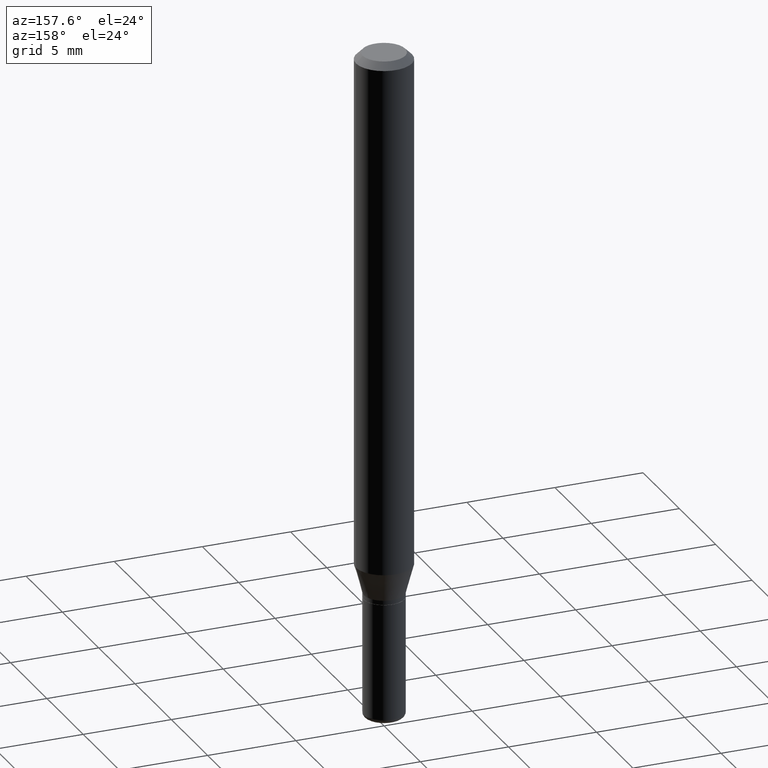
[diagram: clean part render]
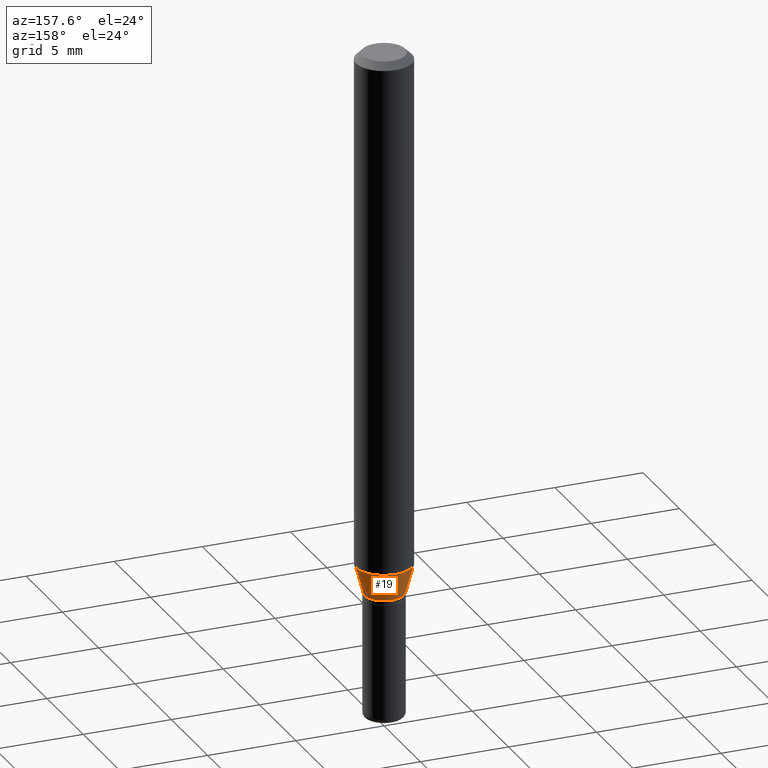
[diagram: same view with one face highlighted and labeled with its STEP entity id]
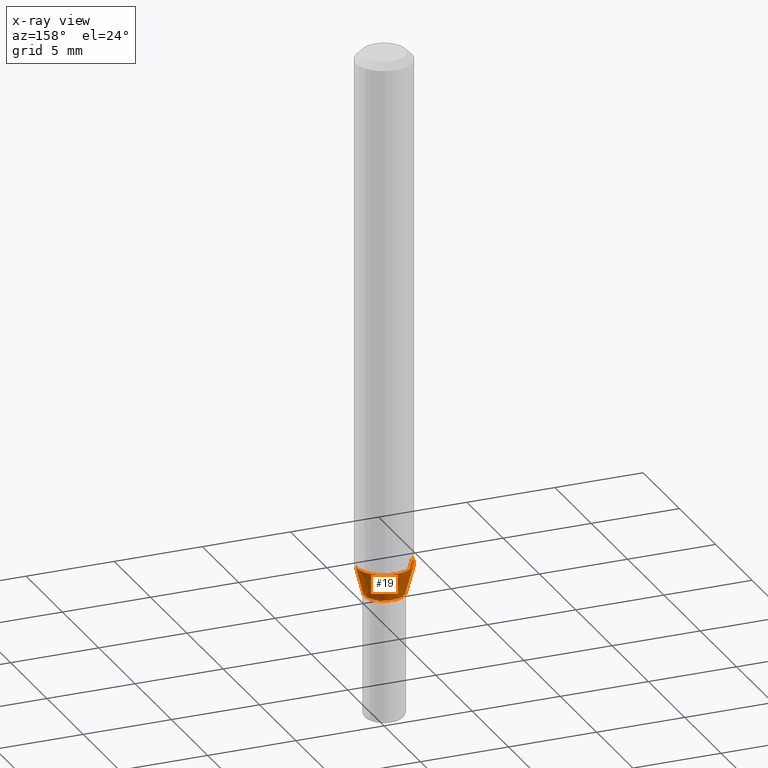
[diagram: x-ray of the same camera — body ghosted, the highlighted face saturated]
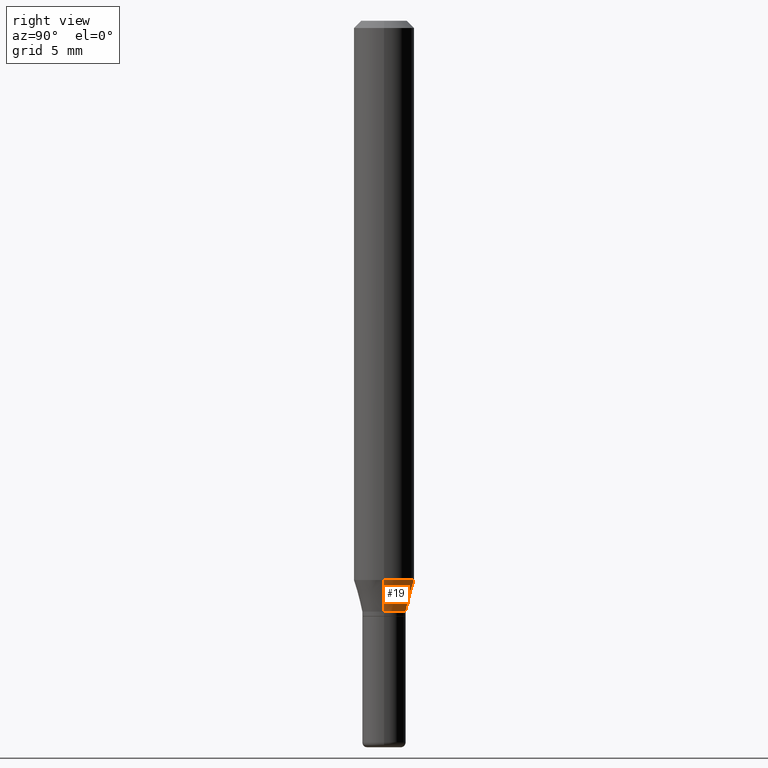
[diagram: same view with one face highlighted and labeled with its STEP entity id]
A machine part, auxiliary view. The second image highlights one B-rep face of the part: STEP entity #19.
The next image is the same camera in x-ray: the body ghosted, the highlighted face saturated — about 0% of this face is hidden behind the body in this view.
A second angle (right view) of the same face is appended — the face is thin or edge-on in the first view.
In plain terms, the highlighted conical surface has half-angle 15 deg.
Its self-contained STEP definition (entity closure, byte-faithful):
#8 = CARTESIAN_POINT ( 'NONE',  ( -0.06250000000000000000, -3.587486272909353851E-15, -1.154689110867544555 ) ) ;
#15 = AXIS2_PLACEMENT_3D ( 'NONE', #472, #72, #341 ) ;
#17 = CARTESIAN_POINT ( 'NONE',  ( 0.06250000000000000000, -4.468010650114807348E-15, -1.154689110867544555 ) ) ;
#19 = ADVANCED_FACE ( 'NONE', ( #88 ), #379, .T. ) ;
#39 = LINE ( 'NONE', #109, #178 ) ;
#51 = LINE ( 'NONE', #353, #302 ) ;
#72 = DIRECTION ( 'NONE',  ( -2.445468806185136597E-29, 3.491481338843145583E-15, 1.000000000000000000 ) ) ;
#88 = FACE_OUTER_BOUND ( 'NONE', #201, .T. ) ;
#100 = ORIENTED_EDGE ( 'NONE', *, *, #194, .T. ) ;
#103 = ORIENTED_EDGE ( 'NONE', *, *, #210, .F. ) ;
#109 = CARTESIAN_POINT ( 'NONE',  ( 0.04499999999999995670, -4.573840553884519999E-15, -1.220000000000000195 ) ) ;
#128 = DIRECTION ( 'NONE',  ( 1.000000000000000000, -6.982962677686275388E-15, 0.000000000000000000 ) ) ;
#129 = EDGE_CURVE ( 'NONE', #469, #384, #396, .T. ) ;
#144 = AXIS2_PLACEMENT_3D ( 'NONE', #243, #403, #128 ) ;
#168 = VERTEX_POINT ( 'NONE', #202 ) ;
#175 = ORIENTED_EDGE ( 'NONE', *, *, #344, .T. ) ;
#178 = VECTOR ( 'NONE', #228, 39.37007874015748854 ) ;
#194 = EDGE_CURVE ( 'NONE', #290, #168, #372, .T. ) ;
#201 = EDGE_LOOP ( 'NONE', ( #100, #175, #338, #103 ) ) ;
#202 = CARTESIAN_POINT ( 'NONE',  ( -0.04499999999999995670, -3.763674637602973398E-15, -1.220000000000000195 ) ) ;
#210 = EDGE_CURVE ( 'NONE', #290, #469, #39, .T. ) ;
#228 = DIRECTION ( 'NONE',  ( 0.2588190451025207395, 1.565188264969626109E-15, 0.9659258262890682012 ) ) ;
#237 = DIRECTION ( 'NONE',  ( -0.2588190451025207395, 5.211531920934546309E-15, 0.9659258262890682012 ) ) ;
#243 = CARTESIAN_POINT ( 'NONE',  ( 2.983471943545866670E-29, -4.259607233388637524E-15, -1.220000000000000195 ) ) ;
#290 = VERTEX_POINT ( 'NONE', #382 ) ;
#302 = VECTOR ( 'NONE', #237, 39.37007874015748854 ) ;
#338 = ORIENTED_EDGE ( 'NONE', *, *, #129, .F. ) ;
#341 = DIRECTION ( 'NONE',  ( 1.000000000000000000, -6.982962677686270655E-15, 0.000000000000000000 ) ) ;
#344 = EDGE_CURVE ( 'NONE', #168, #384, #51, .T. ) ;
#353 = CARTESIAN_POINT ( 'NONE',  ( -0.04499999999999995670, -3.939863002296592945E-15, -1.220000000000000195 ) ) ;
#372 = CIRCLE ( 'NONE', #490, 0.04499999999999995670 ) ;
#379 = CONICAL_SURFACE ( 'NONE', #144, 0.04499999999999995670, 0.2617993877991494633 ) ;
#382 = CARTESIAN_POINT ( 'NONE',  ( 0.04499999999999995670, -4.573840553884519999E-15, -1.220000000000000195 ) ) ;
#384 = VERTEX_POINT ( 'NONE', #8 ) ;
#385 = DIRECTION ( 'NONE',  ( 1.000000000000000000, -6.982962677686275388E-15, 0.000000000000000000 ) ) ;
#396 = CIRCLE ( 'NONE', #15, 0.06250000000000000000 ) ;
#403 = DIRECTION ( 'NONE',  ( -2.445468806185136597E-29, 3.491481338843145583E-15, 1.000000000000000000 ) ) ;
#469 = VERTEX_POINT ( 'NONE', #17 ) ;
#470 = DIRECTION ( 'NONE',  ( -2.445468806185136597E-29, 3.491481338843145583E-15, 1.000000000000000000 ) ) ;
#472 = CARTESIAN_POINT ( 'NONE',  ( 2.823756201468231071E-29, -4.031575482759415678E-15, -1.154689110867544555 ) ) ;
#490 = AXIS2_PLACEMENT_3D ( 'NONE', #515, #470, #385 ) ;
#515 = CARTESIAN_POINT ( 'NONE',  ( 2.983471943545866670E-29, -4.259607233388637524E-15, -1.220000000000000195 ) ) ;